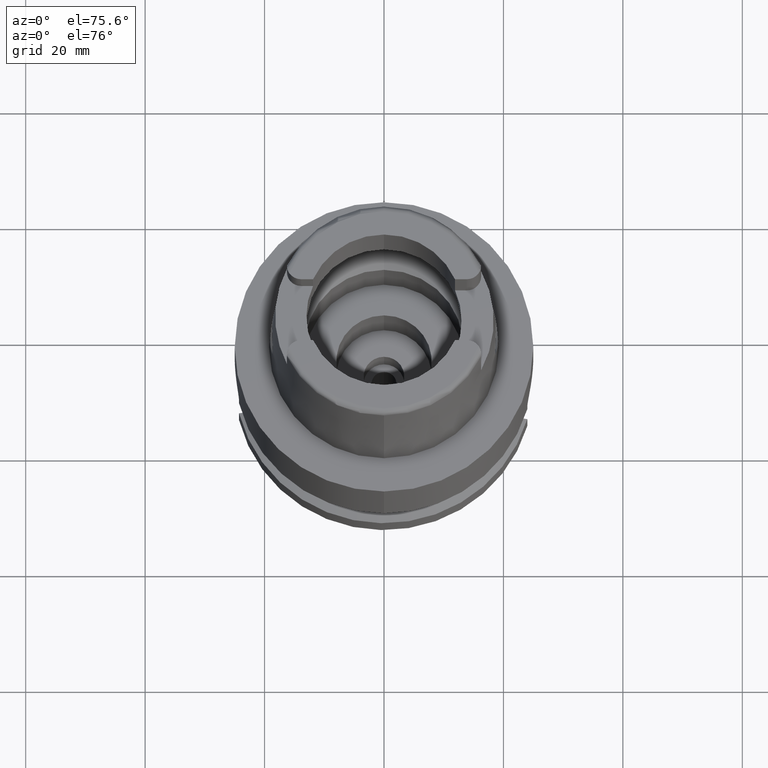
[diagram: clean part render]
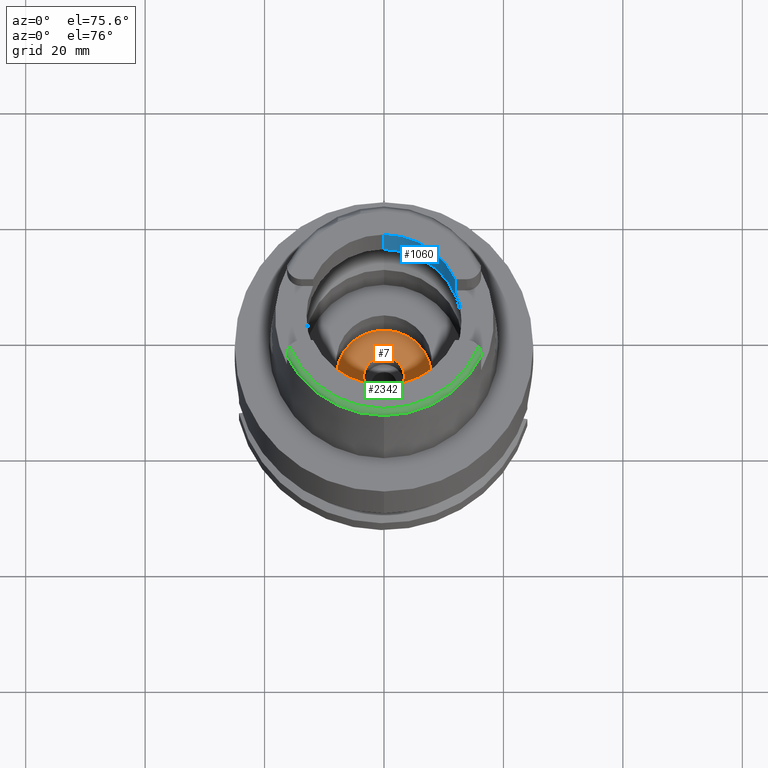
[diagram: same view with three faces highlighted in distinct colors, each labeled with its STEP entity id]
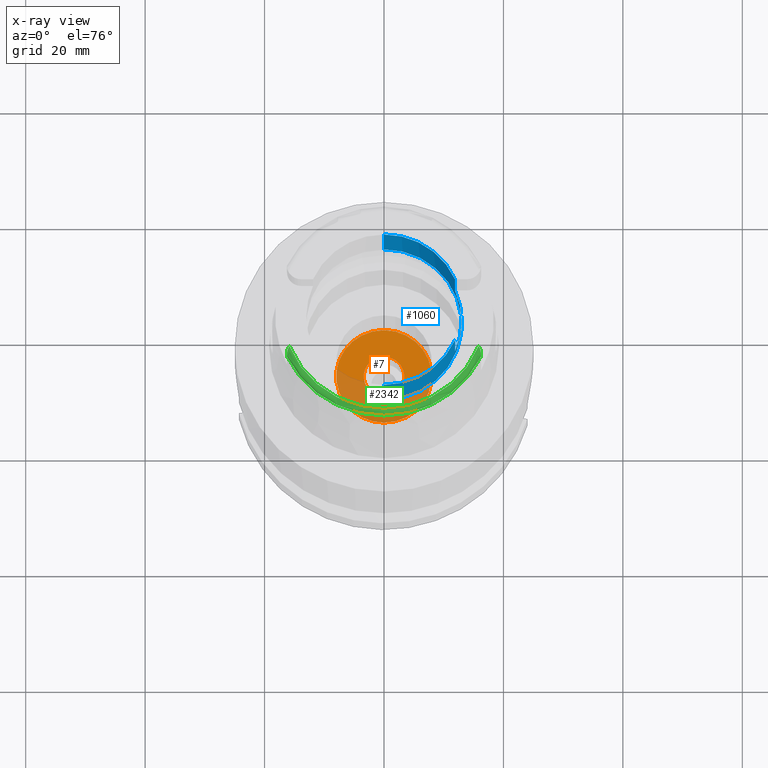
[diagram: x-ray of the same camera — body ghosted, the three highlighted faces saturated]
A machine part, auxiliary view with three faces highlighted in distinct colors.
The next image is the same camera in x-ray (body ghosted, the three faces saturated) — at least one of them is partly hidden behind the body in this view.
Their STEP definitions:

[orange] entity #7 — the highlighted planar face has unit normal (0, 0, 1).
#7 = ADVANCED_FACE ( 'NONE', ( #4311, #1326 ), #2409, .T. ) ;
#62 = VERTEX_POINT ( 'NONE', #326 ) ;
#84 = DIRECTION ( 'NONE',  ( 0.0000000000000000000, 1.000000000000000000, 0.0000000000000000000 ) ) ;
#325 = VERTEX_POINT ( 'NONE', #2030 ) ;
#326 = CARTESIAN_POINT ( 'NONE',  ( 0.0000000000000000000, -3.399999999999999911, -19.92999999999999972 ) ) ;
#745 = CIRCLE ( 'NONE', #4310, 3.399999999999999911 ) ;
#911 = CIRCLE ( 'NONE', #984, 8.000000000000000000 ) ;
#984 = AXIS2_PLACEMENT_3D ( 'NONE', #2350, #2397, #1222 ) ;
#1053 = CARTESIAN_POINT ( 'NONE',  ( 0.0000000000000000000, 0.0000000000000000000, -19.92999999999999972 ) ) ;
#1112 = AXIS2_PLACEMENT_3D ( 'NONE', #3937, #2035, #1252 ) ;
#1222 = DIRECTION ( 'NONE',  ( 0.0000000000000000000, -1.000000000000000000, 0.0000000000000000000 ) ) ;
#1252 = DIRECTION ( 'NONE',  ( 1.000000000000000000, 0.0000000000000000000, 0.0000000000000000000 ) ) ;
#1323 = DIRECTION ( 'NONE',  ( 0.0000000000000000000, 0.0000000000000000000, 1.000000000000000000 ) ) ;
#1326 = FACE_BOUND ( 'NONE', #4707, .T. ) ;
#1420 = CARTESIAN_POINT ( 'NONE',  ( 0.0000000000000000000, 8.000000000000000000, -19.92999999999999972 ) ) ;
#1579 = ORIENTED_EDGE ( 'NONE', *, *, #3749, .F. ) ;
#1665 = AXIS2_PLACEMENT_3D ( 'NONE', #4803, #2182, #84 ) ;
#1933 = VERTEX_POINT ( 'NONE', #1420 ) ;
#2030 = CARTESIAN_POINT ( 'NONE',  ( 0.0000000000000000000, 3.399999999999999911, -19.92999999999999972 ) ) ;
#2035 = DIRECTION ( 'NONE',  ( 0.0000000000000000000, 0.0000000000000000000, 1.000000000000000000 ) ) ;
#2182 = DIRECTION ( 'NONE',  ( 0.0000000000000000000, 0.0000000000000000000, -1.000000000000000000 ) ) ;
#2350 = CARTESIAN_POINT ( 'NONE',  ( 0.0000000000000000000, 0.0000000000000000000, -19.92999999999999972 ) ) ;
#2397 = DIRECTION ( 'NONE',  ( 0.0000000000000000000, 0.0000000000000000000, -1.000000000000000000 ) ) ;
#2409 = PLANE ( 'NONE',  #1112 ) ;
#2454 = AXIS2_PLACEMENT_3D ( 'NONE', #4626, #3934, #4308 ) ;
#2921 = VERTEX_POINT ( 'NONE', #4445 ) ;
#3081 = EDGE_LOOP ( 'NONE', ( #3330, #1579 ) ) ;
#3263 = EDGE_CURVE ( 'NONE', #62, #325, #4616, .T. ) ;
#3323 = CIRCLE ( 'NONE', #1665, 8.000000000000000000 ) ;
#3330 = ORIENTED_EDGE ( 'NONE', *, *, #4579, .F. ) ;
#3369 = ORIENTED_EDGE ( 'NONE', *, *, #3470, .F. ) ;
#3470 = EDGE_CURVE ( 'NONE', #325, #62, #745, .T. ) ;
#3749 = EDGE_CURVE ( 'NONE', #2921, #1933, #911, .T. ) ;
#3825 = ORIENTED_EDGE ( 'NONE', *, *, #3263, .F. ) ;
#3934 = DIRECTION ( 'NONE',  ( 0.0000000000000000000, 0.0000000000000000000, 1.000000000000000000 ) ) ;
#3937 = CARTESIAN_POINT ( 'NONE',  ( 0.0000000000000000000, 0.0000000000000000000, -19.92999999999999972 ) ) ;
#4004 = DIRECTION ( 'NONE',  ( 0.0000000000000000000, 1.000000000000000000, 0.0000000000000000000 ) ) ;
#4308 = DIRECTION ( 'NONE',  ( 0.0000000000000000000, -1.000000000000000000, 0.0000000000000000000 ) ) ;
#4310 = AXIS2_PLACEMENT_3D ( 'NONE', #1053, #1323, #4004 ) ;
#4311 = FACE_OUTER_BOUND ( 'NONE', #3081, .T. ) ;
#4445 = CARTESIAN_POINT ( 'NONE',  ( 0.0000000000000000000, -8.000000000000000000, -19.92999999999999972 ) ) ;
#4579 = EDGE_CURVE ( 'NONE', #1933, #2921, #3323, .T. ) ;
#4616 = CIRCLE ( 'NONE', #2454, 3.399999999999999911 ) ;
#4626 = CARTESIAN_POINT ( 'NONE',  ( 0.0000000000000000000, 0.0000000000000000000, -19.92999999999999972 ) ) ;
#4707 = EDGE_LOOP ( 'NONE', ( #3369, #3825 ) ) ;
#4803 = CARTESIAN_POINT ( 'NONE',  ( 0.0000000000000000000, 0.0000000000000000000, -19.92999999999999972 ) ) ;

[blue] entity #1060 — the highlighted cylindrical surface (partial cylindrical patch) has radius 13 mm, axis along (0, 0, 1).
#9 = DIRECTION ( 'NONE',  ( 0.9141462211317679110, 0.4053846153845859779, 0.0000000000000000000 ) ) ;
#43 = VECTOR ( 'NONE', #2875, 1000.000000000000000 ) ;
#314 = EDGE_CURVE ( 'NONE', #4385, #1924, #3485, .T. ) ;
#352 = DIRECTION ( 'NONE',  ( 0.9141462211317679110, -0.4053846153845859779, 0.0000000000000000000 ) ) ;
#540 = DIRECTION ( 'NONE',  ( 0.0000000000000000000, 0.0000000000000000000, -1.000000000000000000 ) ) ;
#690 = CARTESIAN_POINT ( 'NONE',  ( 0.0000000000000000000, -13.00000000000000000, 14.99602540378000093 ) ) ;
#706 = ORIENTED_EDGE ( 'NONE', *, *, #4178, .T. ) ;
#724 = EDGE_CURVE ( 'NONE', #4089, #3375, #2686, .T. ) ;
#763 = AXIS2_PLACEMENT_3D ( 'NONE', #1999, #540, #2024 ) ;
#794 = VERTEX_POINT ( 'NONE', #1041 ) ;
#807 = CIRCLE ( 'NONE', #3570, 13.00000000000000000 ) ;
#825 = EDGE_LOOP ( 'NONE', ( #1525, #706, #2900, #3141, #2809, #920, #3184, #2916 ) ) ;
#832 = CARTESIAN_POINT ( 'NONE',  ( 0.0000000000000000000, 0.0000000000000000000, 25.00000000000000000 ) ) ;
#920 = ORIENTED_EDGE ( 'NONE', *, *, #724, .T. ) ;
#930 = DIRECTION ( 'NONE',  ( 0.0000000000000000000, 0.0000000000000000000, 1.000000000000000000 ) ) ;
#951 = CARTESIAN_POINT ( 'NONE',  ( 0.0000000000000000000, 13.00000000000000000, 14.99602540378000093 ) ) ;
#1041 = CARTESIAN_POINT ( 'NONE',  ( 0.0000000000000000000, 13.00000000000000000, 14.99602540378000093 ) ) ;
#1050 = LINE ( 'NONE', #690, #4322 ) ;
#1060 = ADVANCED_FACE ( 'NONE', ( #4164 ), #2261, .F. ) ;
#1188 = CARTESIAN_POINT ( 'NONE',  ( 0.0000000000000000000, 0.0000000000000000000, -75.80000000000001137 ) ) ;
#1201 = VERTEX_POINT ( 'NONE', #1998 ) ;
#1202 = DIRECTION ( 'NONE',  ( 0.0000000000000000000, 0.0000000000000000000, 1.000000000000000000 ) ) ;
#1303 = EDGE_CURVE ( 'NONE', #794, #2972, #3237, .T. ) ;
#1348 = AXIS2_PLACEMENT_3D ( 'NONE', #832, #930, #4297 ) ;
#1368 = CARTESIAN_POINT ( 'NONE',  ( 11.88390087470999923, 5.270000000000000462, 25.00000000000000000 ) ) ;
#1387 = LINE ( 'NONE', #3286, #1435 ) ;
#1435 = VECTOR ( 'NONE', #4461, 1000.000000000000000 ) ;
#1456 = CARTESIAN_POINT ( 'NONE',  ( 0.0000000000000000000, -13.00000000000000000, 25.00000000000000000 ) ) ;
#1525 = ORIENTED_EDGE ( 'NONE', *, *, #3479, .F. ) ;
#1541 = EDGE_CURVE ( 'NONE', #4385, #3375, #1387, .T. ) ;
#1553 = CARTESIAN_POINT ( 'NONE',  ( 0.0000000000000000000, 13.00000000000000000, 25.00000000000000000 ) ) ;
#1790 = CARTESIAN_POINT ( 'NONE',  ( 11.88390087470999923, 5.270000000000000462, 17.50000000000000000 ) ) ;
#1852 = DIRECTION ( 'NONE',  ( 0.0000000000000000000, 9.659541928455000240E-14, 1.000000000000000000 ) ) ;
#1917 = DIRECTION ( 'NONE',  ( 0.0000000000000000000, 1.000000000000000000, 0.0000000000000000000 ) ) ;
#1924 = VERTEX_POINT ( 'NONE', #1790 ) ;
#1943 = CARTESIAN_POINT ( 'NONE',  ( 11.88390087470999923, -5.270000000000000462, 17.50000000000000000 ) ) ;
#1998 = CARTESIAN_POINT ( 'NONE',  ( 11.88390087470999923, 5.270000000000000462, 25.00000000000000000 ) ) ;
#1999 = CARTESIAN_POINT ( 'NONE',  ( 0.0000000000000000000, 0.0000000000000000000, 14.99602540378000093 ) ) ;
#2024 = DIRECTION ( 'NONE',  ( 0.0000000000000000000, 1.000000000000000000, 0.0000000000000000000 ) ) ;
#2060 = AXIS2_PLACEMENT_3D ( 'NONE', #1188, #4187, #1917 ) ;
#2261 = CYLINDRICAL_SURFACE ( 'NONE', #2060, 13.00000000000000000 ) ;
#2549 = CIRCLE ( 'NONE', #763, 13.00000000000000000 ) ;
#2607 = EDGE_CURVE ( 'NONE', #794, #2697, #2549, .T. ) ;
#2686 = CIRCLE ( 'NONE', #1348, 13.00000000000000000 ) ;
#2697 = VERTEX_POINT ( 'NONE', #4038 ) ;
#2809 = ORIENTED_EDGE ( 'NONE', *, *, #3117, .T. ) ;
#2875 = DIRECTION ( 'NONE',  ( 0.0000000000000000000, 0.0000000000000000000, -1.000000000000000000 ) ) ;
#2900 = ORIENTED_EDGE ( 'NONE', *, *, #1303, .F. ) ;
#2916 = ORIENTED_EDGE ( 'NONE', *, *, #314, .T. ) ;
#2972 = VERTEX_POINT ( 'NONE', #1553 ) ;
#3117 = EDGE_CURVE ( 'NONE', #2697, #4089, #1050, .T. ) ;
#3141 = ORIENTED_EDGE ( 'NONE', *, *, #2607, .T. ) ;
#3179 = CARTESIAN_POINT ( 'NONE',  ( 11.88390087470999923, -5.270000000000000462, 25.00000000000000000 ) ) ;
#3184 = ORIENTED_EDGE ( 'NONE', *, *, #1541, .F. ) ;
#3237 = LINE ( 'NONE', #951, #3818 ) ;
#3286 = CARTESIAN_POINT ( 'NONE',  ( 11.88390087470999923, -5.270000000000000462, 17.50000000000000000 ) ) ;
#3362 = CARTESIAN_POINT ( 'NONE',  ( 0.0000000000000000000, 0.0000000000000000000, 25.00000000000000000 ) ) ;
#3375 = VERTEX_POINT ( 'NONE', #3179 ) ;
#3479 = EDGE_CURVE ( 'NONE', #1201, #1924, #4769, .T. ) ;
#3485 = CIRCLE ( 'NONE', #3887, 13.00000000000000000 ) ;
#3570 = AXIS2_PLACEMENT_3D ( 'NONE', #3362, #3686, #9 ) ;
#3600 = DIRECTION ( 'NONE',  ( 0.0000000000000000000, -9.659541928455000240E-14, 1.000000000000000000 ) ) ;
#3686 = DIRECTION ( 'NONE',  ( 0.0000000000000000000, 0.0000000000000000000, 1.000000000000000000 ) ) ;
#3818 = VECTOR ( 'NONE', #3600, 1000.000000000000000 ) ;
#3887 = AXIS2_PLACEMENT_3D ( 'NONE', #4595, #1202, #352 ) ;
#4038 = CARTESIAN_POINT ( 'NONE',  ( 0.0000000000000000000, -13.00000000000000000, 14.99602540378000093 ) ) ;
#4089 = VERTEX_POINT ( 'NONE', #1456 ) ;
#4164 = FACE_OUTER_BOUND ( 'NONE', #825, .T. ) ;
#4178 = EDGE_CURVE ( 'NONE', #1201, #2972, #807, .T. ) ;
#4187 = DIRECTION ( 'NONE',  ( 0.0000000000000000000, 0.0000000000000000000, 1.000000000000000000 ) ) ;
#4297 = DIRECTION ( 'NONE',  ( 0.0000000000000000000, -1.000000000000000000, 0.0000000000000000000 ) ) ;
#4322 = VECTOR ( 'NONE', #1852, 1000.000000000000000 ) ;
#4385 = VERTEX_POINT ( 'NONE', #1943 ) ;
#4461 = DIRECTION ( 'NONE',  ( 0.0000000000000000000, 0.0000000000000000000, 1.000000000000000000 ) ) ;
#4595 = CARTESIAN_POINT ( 'NONE',  ( 0.0000000000000000000, 0.0000000000000000000, 17.50000000000000000 ) ) ;
#4769 = LINE ( 'NONE', #1368, #43 ) ;

[green] entity #2342 — the highlighted toroidal blend (fillet) surface has major radius 17.0488 mm and minor (blend) radius 1 mm.
#103 = CARTESIAN_POINT ( 'NONE',  ( -16.20473417851333409, -7.122159436246414899, 24.76566879204019145 ) ) ;
#173 = EDGE_CURVE ( 'NONE', #1096, #3596, #1031, .T. ) ;
#229 = VERTEX_POINT ( 'NONE', #4203 ) ;
#250 = DIRECTION ( 'NONE',  ( -0.0008255998758095713444, -0.9999996591923644429, 0.0000000000000000000 ) ) ;
#271 = CARTESIAN_POINT ( 'NONE',  ( 16.00845146624633131, -6.584544753029304864, 24.96564954869198516 ) ) ;
#294 = CARTESIAN_POINT ( 'NONE',  ( 15.99518504837731747, -6.558515866606212441, 24.97132509189874128 ) ) ;
#313 = DIRECTION ( 'NONE',  ( 0.0000000000000000000, 0.0000000000000000000, -1.000000000000000000 ) ) ;
#394 = CARTESIAN_POINT ( 'NONE',  ( 16.26000000000000156, -7.756972648925764879, 24.28206343553388535 ) ) ;
#414 = EDGE_CURVE ( 'NONE', #229, #1378, #3513, .T. ) ;
#436 = CARTESIAN_POINT ( 'NONE',  ( 15.96628188518488933, -6.504236805496544704, 24.98175233120829475 ) ) ;
#438 = CARTESIAN_POINT ( 'NONE',  ( 16.26000240863000101, -7.831001009901999765, 24.04998241223000122 ) ) ;
#475 = CARTESIAN_POINT ( 'NONE',  ( -16.14809069452794787, -6.925558306853681678, 24.85472361207739311 ) ) ;
#524 = CARTESIAN_POINT ( 'NONE',  ( -16.26000000000000156, -7.649999999999999467, 24.38968791394999869 ) ) ;
#565 = CARTESIAN_POINT ( 'NONE',  ( -16.25999999999999801, -7.611329751620960593, 24.42859379647678608 ) ) ;
#638 = CARTESIAN_POINT ( 'NONE',  ( 16.26000000000000156, -7.649999999999999467, 24.38968791394999869 ) ) ;
#661 = CARTESIAN_POINT ( 'NONE',  ( 16.26000000000000156, -7.572651066010300802, 24.46750816763787029 ) ) ;
#733 = CARTESIAN_POINT ( 'NONE',  ( -16.25999847872000004, -7.831027617251998585, 24.04990901149999871 ) ) ;
#795 = CARTESIAN_POINT ( 'NONE',  ( 15.87413869004757494, -6.349550716507503800, 25.00000000000000711 ) ) ;
#843 = CARTESIAN_POINT ( 'NONE',  ( -16.25907012570162280, -7.568109279176117532, 24.46714854333093214 ) ) ;
#937 = CARTESIAN_POINT ( 'NONE',  ( -16.24636151178298604, -7.393822977427984000, 24.59918985727787089 ) ) ;
#995 = ORIENTED_EDGE ( 'NONE', *, *, #4243, .T. ) ;
#1001 = CARTESIAN_POINT ( 'NONE',  ( -16.26000000000000156, -7.649999999999999467, 24.38968791394999869 ) ) ;
#1003 = DIRECTION ( 'NONE',  ( 0.9009559685361676618, -0.4339105239090842447, 0.0000000000000000000 ) ) ;
#1031 = CIRCLE ( 'NONE', #4751, 18.04750486564999434 ) ;
#1039 = CIRCLE ( 'NONE', #3814, 17.04875252221999560 ) ;
#1045 = CARTESIAN_POINT ( 'NONE',  ( 0.0000000000000000000, 0.0000000000000000000, 25.00000000000000000 ) ) ;
#1087 = EDGE_CURVE ( 'NONE', #1694, #2111, #1380, .T. ) ;
#1096 = VERTEX_POINT ( 'NONE', #1392 ) ;
#1099 = EDGE_CURVE ( 'NONE', #3596, #229, #2256, .T. ) ;
#1100 = DIRECTION ( 'NONE',  ( 0.0000000000000000000, 0.0000000000000000000, 1.000000000000000000 ) ) ;
#1125 = CARTESIAN_POINT ( 'NONE',  ( 16.26000000000000156, -7.817306318893098904, 24.16882826829388620 ) ) ;
#1144 = AXIS2_PLACEMENT_3D ( 'NONE', #4400, #3980, #1003 ) ;
#1226 = CARTESIAN_POINT ( 'NONE',  ( -16.05121539349500281, -6.674633249387348144, 24.94261519464693677 ) ) ;
#1248 = CARTESIAN_POINT ( 'NONE',  ( -15.84131538932999739, -6.301800480795000325, 25.00000000000000000 ) ) ;
#1254 = B_SPLINE_CURVE_WITH_KNOTS ( 'NONE', 3,
 ( #1831, #394, #1125, #2642 ),
 .UNSPECIFIED., .F., .F.,
 ( 4, 4 ),
 ( 0.0000000000000000000, 1.000000000000000000 ),
 .UNSPECIFIED. ) ;
#1341 = CARTESIAN_POINT ( 'NONE',  ( -16.26000000000000156, -7.817328874249036552, 24.16879003175042229 ) ) ;
#1378 = VERTEX_POINT ( 'NONE', #4342 ) ;
#1380 = B_SPLINE_CURVE_WITH_KNOTS ( 'NONE', 3,
 ( #1552, #795, #2286, #3817, #436, #294, #271, #2892, #3627, #3670, #1729, #1781, #2051, #3291, #4397, #1754, #661, #638 ),
 .UNSPECIFIED., .F., .F.,
 ( 4, 2, 2, 2, 2, 2, 2, 2, 4 ),
 ( 0.0000000000000000000, 0.1249999999999913680, 0.1874999999999888145, 0.2499999999999862887, 0.4999999999999830136, 0.6249999999999813483, 0.6874999999999825695, 0.7499999999999837907, 1.000000000000000000 ),
 .UNSPECIFIED. ) ;
#1392 = CARTESIAN_POINT ( 'NONE',  ( 0.0000000000000000000, -18.04750486565000145, 24.04993752584000077 ) ) ;
#1471 = ORIENTED_EDGE ( 'NONE', *, *, #414, .F. ) ;
#1477 = DIRECTION ( 'NONE',  ( 0.9291773910543710269, -0.3696341109169885564, 0.0000000000000000000 ) ) ;
#1552 = CARTESIAN_POINT ( 'NONE',  ( 15.84131538932999739, -6.301800480794000237, 25.00000000000000000 ) ) ;
#1694 = VERTEX_POINT ( 'NONE', #3003 ) ;
#1729 = CARTESIAN_POINT ( 'NONE',  ( 16.20094017609095260, -7.119272069705592010, 24.76398178789191817 ) ) ;
#1754 = CARTESIAN_POINT ( 'NONE',  ( 16.25642477869864422, -7.477017852878962145, 24.54390723193700907 ) ) ;
#1781 = CARTESIAN_POINT ( 'NONE',  ( 16.21969524431216314, -7.212695731795415455, 24.71244040303986012 ) ) ;
#1831 = CARTESIAN_POINT ( 'NONE',  ( 16.26000000000000156, -7.649999999999999467, 24.38968791394999869 ) ) ;
#1953 = CARTESIAN_POINT ( 'NONE',  ( -16.09040545767966179, -6.767027976407158363, 24.91397926999686874 ) ) ;
#2006 = CARTESIAN_POINT ( 'NONE',  ( -15.90698849390864744, -6.397339508100611027, 24.99999999999999289 ) ) ;
#2051 = CARTESIAN_POINT ( 'NONE',  ( 16.22523236542751945, -7.243507654080795000, 24.69462219241370349 ) ) ;
#2054 = CARTESIAN_POINT ( 'NONE',  ( -16.25516997160408295, -7.496579681003477269, 24.52445396010320167 ) ) ;
#2111 = VERTEX_POINT ( 'NONE', #2779 ) ;
#2256 = B_SPLINE_CURVE_WITH_KNOTS ( 'NONE', 3,
 ( #4439, #1341, #4813, #1001 ),
 .UNSPECIFIED., .F., .F.,
 ( 4, 4 ),
 ( 0.0000000000000000000, 1.000000000000000000 ),
 .UNSPECIFIED. ) ;
#2257 = EDGE_CURVE ( 'NONE', #4402, #1096, #4465, .T. ) ;
#2286 = CARTESIAN_POINT ( 'NONE',  ( 15.90589042189363767, -6.399477940941473264, 24.99652425356348928 ) ) ;
#2309 = ORIENTED_EDGE ( 'NONE', *, *, #1099, .F. ) ;
#2342 = ADVANCED_FACE ( 'NONE', ( #3718 ), #4709, .T. ) ;
#2542 = CARTESIAN_POINT ( 'NONE',  ( 0.0000000000000000000, 0.0000000000000000000, 24.04993752584000077 ) ) ;
#2543 = AXIS2_PLACEMENT_3D ( 'NONE', #2959, #1100, #4864 ) ;
#2642 = CARTESIAN_POINT ( 'NONE',  ( 16.26000240863000101, -7.831001009901999765, 24.04998241223000122 ) ) ;
#2733 = CARTESIAN_POINT ( 'NONE',  ( -16.03654621743767805, -6.642681562722719590, 24.95132460843890598 ) ) ;
#2779 = CARTESIAN_POINT ( 'NONE',  ( 16.26000000000000156, -7.649999999999999467, 24.38968791394999869 ) ) ;
#2802 = CARTESIAN_POINT ( 'NONE',  ( -16.25344999190270912, -7.471621253098316373, 24.54346798177579458 ) ) ;
#2892 = CARTESIAN_POINT ( 'NONE',  ( 16.08062528897581700, -6.733890412157811589, 24.92885701904107165 ) ) ;
#2941 = ORIENTED_EDGE ( 'NONE', *, *, #173, .F. ) ;
#2959 = CARTESIAN_POINT ( 'NONE',  ( 0.0000000000000000000, 0.0000000000000000000, 24.00000000000000000 ) ) ;
#3003 = CARTESIAN_POINT ( 'NONE',  ( 15.84131538932999739, -6.301800480794000237, 25.00000000000000000 ) ) ;
#3202 = EDGE_CURVE ( 'NONE', #2111, #4402, #1254, .T. ) ;
#3291 = CARTESIAN_POINT ( 'NONE',  ( 16.23497671329187142, -7.304405504973428442, 24.65771027314376695 ) ) ;
#3477 = CARTESIAN_POINT ( 'NONE',  ( -16.07774256274971947, -6.735973626732430830, 24.92414777371820023 ) ) ;
#3513 = B_SPLINE_CURVE_WITH_KNOTS ( 'NONE', 3,
 ( #524, #565, #843, #2054, #2802, #4327, #937, #4231, #103, #475, #4624, #1953, #3477, #1226, #2733, #4260, #2006, #1248 ),
 .UNSPECIFIED., .F., .F.,
 ( 4, 2, 2, 2, 2, 2, 2, 2, 4 ),
 ( 0.0000000000000000000, 0.1250000000000019151, 0.1875000000000035805, 0.2500000000000052180, 0.5000000000000038858, 0.6250000000000013323, 0.6875000000000011102, 0.7500000000000007772, 1.000000000000000000 ),
 .UNSPECIFIED. ) ;
#3539 = EDGE_LOOP ( 'NONE', ( #2941, #4346, #4131, #4273, #995, #1471, #2309 ) ) ;
#3596 = VERTEX_POINT ( 'NONE', #733 ) ;
#3627 = CARTESIAN_POINT ( 'NONE',  ( 16.12973708432368269, -6.861861269494013982, 24.88356850858410141 ) ) ;
#3634 = DIRECTION ( 'NONE',  ( 0.0000000000000000000, 0.0000000000000000000, -1.000000000000000000 ) ) ;
#3670 = CARTESIAN_POINT ( 'NONE',  ( 16.18557780420355385, -7.055667693507973404, 24.79579171509138646 ) ) ;
#3718 = FACE_OUTER_BOUND ( 'NONE', #3539, .T. ) ;
#3814 = AXIS2_PLACEMENT_3D ( 'NONE', #1045, #313, #1477 ) ;
#3817 = CARTESIAN_POINT ( 'NONE',  ( 15.95144356154168364, -6.477638738794407658, 24.98609701425393226 ) ) ;
#3980 = DIRECTION ( 'NONE',  ( 0.0000000000000000000, 0.0000000000000000000, -1.000000000000000000 ) ) ;
#4131 = ORIENTED_EDGE ( 'NONE', *, *, #3202, .F. ) ;
#4203 = CARTESIAN_POINT ( 'NONE',  ( -16.26000000000000156, -7.649999999999999467, 24.38968791394999869 ) ) ;
#4231 = CARTESIAN_POINT ( 'NONE',  ( -16.22841111542105708, -7.245449911093333029, 24.69778847608381156 ) ) ;
#4243 = EDGE_CURVE ( 'NONE', #1694, #1378, #1039, .T. ) ;
#4260 = CARTESIAN_POINT ( 'NONE',  ( -15.96837233911677778, -6.501604020562711916, 24.98609274526826241 ) ) ;
#4273 = ORIENTED_EDGE ( 'NONE', *, *, #1087, .F. ) ;
#4327 = CARTESIAN_POINT ( 'NONE',  ( -16.24895756944015801, -7.419513827743745793, 24.58132045728466863 ) ) ;
#4342 = CARTESIAN_POINT ( 'NONE',  ( -15.84131538932999739, -6.301800480795000325, 25.00000000000000000 ) ) ;
#4346 = ORIENTED_EDGE ( 'NONE', *, *, #2257, .F. ) ;
#4397 = CARTESIAN_POINT ( 'NONE',  ( 16.23936363164266439, -7.335976751363669557, 24.63762957557500144 ) ) ;
#4400 = CARTESIAN_POINT ( 'NONE',  ( 0.0000000000000000000, 0.0000000000000000000, 24.04993752584000077 ) ) ;
#4402 = VERTEX_POINT ( 'NONE', #438 ) ;
#4439 = CARTESIAN_POINT ( 'NONE',  ( -16.25999847872000004, -7.831027617251998585, 24.04990901149999871 ) ) ;
#4465 = CIRCLE ( 'NONE', #1144, 18.04750486565000855 ) ;
#4624 = CARTESIAN_POINT ( 'NONE',  ( -16.12651798942976455, -6.861276695970643935, 24.88066937906189935 ) ) ;
#4709 = TOROIDAL_SURFACE ( 'NONE', #2543, 17.04875252221999560, 1.000000000000000000 ) ;
#4751 = AXIS2_PLACEMENT_3D ( 'NONE', #2542, #3634, #250 ) ;
#4813 = CARTESIAN_POINT ( 'NONE',  ( -16.26000000000000156, -7.756986335165035662, 24.28204966590041636 ) ) ;
#4864 = DIRECTION ( 'NONE',  ( -0.0008255998758100714869, -0.9999996591923645539, 0.0000000000000000000 ) ) ;